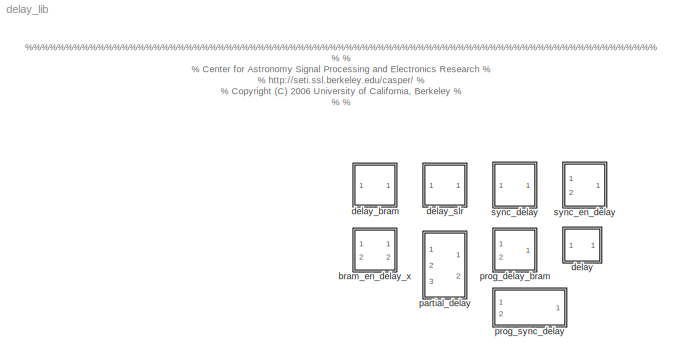
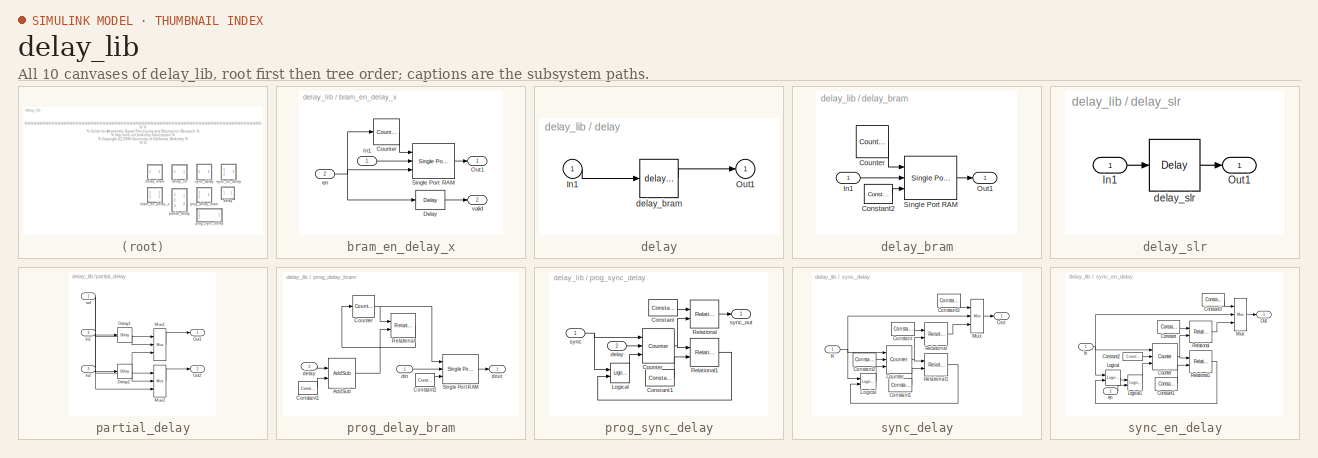
[diagram: thumbnail index - all 10 canvases of the model, root first then tree order]
MODEL delay_lib
KIND library
BLOCK [SubSystem] bram_en_delay_x
  MaskCallbackString = |
  MaskDisplay = fprintf('Z^-%d', DelayLen);\nport_label('input',2,'en');\nport_label('output',2,'valid');
  MaskEnableString = on,on
  MaskIconFrame = on
  MaskIconOpaque = on
  MaskIconRotate = none
  MaskIconUnits = autoscale
  MaskInitialization = BitWidth = max(ceil(log2(DelayLen)), 2);
  MaskPromptString = Enabled Delays:|Extra (unenabled) delay for BRAM Latency
  MaskSelfModifiable = on
  MaskStyleString = edit,edit
  MaskTabNameString = ,
  MaskToolTipString = on,on
  MaskTunableValueString = on,on
  MaskType = delay_bram
  MaskValueString = 7|4
  MaskVarAliasString = ,
  MaskVariables = DelayLen=@1;bram_latency=@2;
  MaskVisibilityString = on,on
  MinAlgLoopOccurrences = off
  Ports = [2, 2]
  RTWSystemCode = Auto
  TreatAsAtomicUnit = off
BLOCK [Reference] bram_en_delay_x/Counter  REF=xbsIndex_r3/Counter
  Ports = [1, 1]
  SourceBlock = xbsIndex_r3/Counter
  SourceType = Xilinx Counter Block
  arith_type = Unsigned
  bin_pt = 0
  cnt_by_val = 1
  cnt_to = DelayLen - 1
  cnt_type = Count Limited
  dbl_ovrd = off
  en = on
  explicit_period = off
  gen_core = on
  load_pin = off
  n_bits = BitWidth
  operation = Up
  period = 1
  rst = off
  show_param = off
  start_count = 0
  use_rpm = off
  xl_area = [0, 0, 0, 0, 0, 0, 0]
  xl_use_area = off
BLOCK [Reference] bram_en_delay_x/Delay  REF=xbsIndex_r3/Delay
  Ports = [1, 1]
  SourceBlock = xbsIndex_r3/Delay
  SourceType = Xilinx Delay Block
  accept_only_valid = off
  dbl_ovrd = off
  en = off
  explicit_period = off
  init_zero = on
  latency = bram_latency
  period = 1
  reg_retiming = off
  show_param = off
  xl_area = [0, 0, 0, 0, 0, 0, 0]
  xl_use_area = off
BLOCK [Inport] bram_en_delay_x/In1
  IconDisplay = Port number
  LatchInput = off
  Port = 1
BLOCK [Outport] bram_en_delay_x/Out1
  BusOutputAsStruct = off
  IconDisplay = Port number
BLOCK [Reference] bram_en_delay_x/Single Port RAM  REF=xbsIndex_r3/Single Port RAM
  Ports = [3, 1]
  SourceBlock = xbsIndex_r3/Single Port RAM
  SourceType = Xilinx Single Port Random Access Memory
  dbl_ovrd = off
  depth = 2^BitWidth
  distributed_mem = off
  en = off
  explicit_period = off
  gen_core = off
  initVector = 0
  init_reg = 0
  init_zero = on
  latency = bram_latency
  period = 1
  rst = off
  show_param = off
  use_rpm = off
  write_mode = Read Before Write
  xl_area = [0, 0, 0, 0, 0, 0, 0]
  xl_use_area = off
BLOCK [Inport] bram_en_delay_x/en
  IconDisplay = Port number
  LatchInput = off
  Port = 2
BLOCK [Outport] bram_en_delay_x/valid
  BusOutputAsStruct = off
  IconDisplay = Port number
  Port = 2
BLOCK [SubSystem] delay
  BlockChoice = delay_bram
  MemberBlocks = delay_bram,delay_slr
  MinAlgLoopOccurrences = off
  Ports = [1, 1]
  RTWSystemCode = Auto
  TemplateBlock = self
  TreatAsAtomicUnit = off
BLOCK [Inport] delay/In1
  IconDisplay = Port number
  LatchInput = off
  Port = 1
BLOCK [Outport] delay/Out1
  BusOutputAsStruct = off
  IconDisplay = Port number
BLOCK [Reference] delay/delay_bram  REF=delay_lib/delay_bram  (lib defined in mdl_032c7a696b9b)
  DelayLen = 7
  Ports = [1, 1]
  ShowPortLabels = on
  SourceBlock = delay_lib/delay_bram
  SourceType = delay_bram
  bram_latency = 4
BLOCK [SubSystem] delay_bram
  MaskCallbackString = |
  MaskDisplay = fprintf('Z^-%d', DelayLen)
  MaskEnableString = on,on
  MaskIconFrame = on
  MaskIconOpaque = on
  MaskIconRotate = none
  MaskIconUnits = autoscale
  MaskInitialization = if (DelayLen <= bram_latency)\n	error('delay value must be greater than BRAM Latency');\nend\nBitWidth = max(ceil(log2(DelayLen)), 2);
  MaskPromptString = Delay By:|BRAM Latency
  MaskSelfModifiable = on
  MaskStyleString = edit,edit
  MaskTabNameString = ,
  MaskToolTipString = on,on
  MaskTunableValueString = on,on
  MaskType = delay_bram
  MaskValueString = 7|4
  MaskVarAliasString = ,
  MaskVariables = DelayLen=@1;bram_latency=@2;
  MaskVisibilityString = on,on
  MinAlgLoopOccurrences = off
  Ports = [1, 1]
  RTWSystemCode = Auto
  TreatAsAtomicUnit = off
BLOCK [Reference] delay_bram/Constant2  REF=xbsIndex_r3/Constant
  Ports = [0, 1]
  SourceBlock = xbsIndex_r3/Constant
  SourceType = Xilinx Constant Block
  arith_type = Boolean
  bin_pt = 0
  carry = CIN
  const = 1
  dbl_ovrd = off
  equ = P=C
  explicit_period = on
  inp1 = P
  inp2 = PCIN>>17
  iostate = 0
  n_bits = 1
  opr = +
  opselect = C
  period = 1
BLOCK [Reference] delay_bram/Counter  REF=xbsIndex_r3/Counter
  Ports = [0, 1]
  SourceBlock = xbsIndex_r3/Counter
  SourceType = Xilinx Counter Block
  arith_type = Unsigned
  bin_pt = 0
  cnt_by_val = 1
  cnt_to = DelayLen - bram_latency - 1
  cnt_type = Count Limited
  dbl_ovrd = off
  en = off
  explicit_period = off
  gen_core = on
  load_pin = off
  n_bits = BitWidth
  operation = Up
  period = 1
  rst = off
  show_param = off
  start_count = 0
  use_rpm = off
  xl_area = [0, 0, 0, 0, 0, 0, 0]
  xl_use_area = off
BLOCK [Inport] delay_bram/In1
  IconDisplay = Port number
  LatchInput = off
  Port = 1
BLOCK [Outport] delay_bram/Out1
  BusOutputAsStruct = off
  IconDisplay = Port number
BLOCK [Reference] delay_bram/Single Port RAM  REF=xbsIndex_r3/Single Port RAM
  Ports = [3, 1]
  SourceBlock = xbsIndex_r3/Single Port RAM
  SourceType = Xilinx Single Port Random Access Memory
  dbl_ovrd = off
  depth = 2^BitWidth
  distributed_mem = off
  en = off
  explicit_period = off
  gen_core = off
  initVector = 0
  init_reg = 0
  init_zero = on
  latency = bram_latency
  period = 1
  rst = off
  show_param = off
  use_rpm = off
  write_mode = Read Before Write
  xl_area = [0, 0, 0, 0, 0, 0, 0]
  xl_use_area = off
BLOCK [SubSystem] delay_slr
  MaskEnableString = on
  MaskIconFrame = on
  MaskIconOpaque = on
  MaskIconRotate = none
  MaskIconUnits = autoscale
  MaskPromptString = Delay by:
  MaskStyleString = edit
  MaskToolTipString = on
  MaskTunableValueString = on
  MaskValueString = 0
  MaskVariables = DelayLen=@1;
  MaskVisibilityString = on
  MinAlgLoopOccurrences = off
  Ports = [1, 1]
  RTWSystemCode = Auto
  TreatAsAtomicUnit = off
BLOCK [Inport] delay_slr/In1
  IconDisplay = Port number
  LatchInput = off
  Port = 1
BLOCK [Outport] delay_slr/Out1
  BusOutputAsStruct = off
  IconDisplay = Port number
BLOCK [Reference] delay_slr/delay_slr  REF=xbsIndex_r3/Delay
  Ports = [1, 1]
  SourceBlock = xbsIndex_r3/Delay
  SourceType = Xilinx Delay Block
  accept_only_valid = off
  dbl_ovrd = off
  en = off
  explicit_period = off
  init_zero = on
  latency = DelayLen
  period = 1
  reg_retiming = off
  show_param = off
  xl_area = [0, 0, 0, 0, 0, 0, 0]
  xl_use_area = off
BLOCK [SubSystem] partial_delay
  MaskCallbackString = |
  MaskEnableString = on,on
  MaskIconFrame = on
  MaskIconOpaque = on
  MaskIconRotate = none
  MaskIconUnits = autoscale
  MaskInitialization = if num_inputs < 2,\n    error('Number of inputs less than 2.')\nend\n\npartial_delay_mask
  MaskPromptString = Number of Inputs (? >= 2)|Mux Latency
  MaskSelfModifiable = on
  MaskStyleString = edit,edit
  MaskTabNameString = ,
  MaskToolTipString = on,on
  MaskTunableValueString = on,on
  MaskValueString = 2|0
  MaskVarAliasString = ,
  MaskVariables = num_inputs=@1;mux_latency=@2;
  MaskVisibilityString = on,on
  MinAlgLoopOccurrences = off
  Ports = [3, 2]
  RTWSystemCode = Auto
  TreatAsAtomicUnit = off
BLOCK [Reference] partial_delay/Delay1  REF=xbsIndex_r3/Delay
  Ports = [1, 1]
  SourceBlock = xbsIndex_r3/Delay
  SourceType = Xilinx Delay Block
  accept_only_valid = off
  dbl_ovrd = off
  en = off
  explicit_period = off
  init_zero = on
  latency = 1
  period = 1
  reg_retiming = off
  show_param = off
  xl_area = [0, 0, 0, 0, 0, 0, 0]
  xl_use_area = off
BLOCK [Reference] partial_delay/Delay2  REF=xbsIndex_r3/Delay
  Ports = [1, 1]
  SourceBlock = xbsIndex_r3/Delay
  SourceType = Xilinx Delay Block
  accept_only_valid = off
  dbl_ovrd = off
  en = off
  explicit_period = off
  init_zero = on
  latency = 1
  period = 1
  reg_retiming = off
  show_param = off
  xl_area = [0, 0, 0, 0, 0, 0, 0]
  xl_use_area = off
BLOCK [Inport] partial_delay/In1
  IconDisplay = Port number
  LatchInput = off
  Port = 2
BLOCK [Inport] partial_delay/In2
  IconDisplay = Port number
  LatchInput = off
  Port = 3
BLOCK [Reference] partial_delay/Mux1  REF=xbsIndex_r3/Mux
  Ports = [3, 1]
  SourceBlock = xbsIndex_r3/Mux
  SourceType = Xilinx Multiplexer Block
  arith_type = Signed  (2's comp)
  bin_pt = 2
  dbl_ovrd = off
  en = off
  explicit_period = off
  gen_core = off
  inputs = 2
  latency = mux_latency
  mux_type = off
  n_bits = 8
  overflow = Wrap
  period = 1
  precision = Full
  quantization = Truncate
  show_param = off
  use_rpm = off
  xl_area = [0, 0, 0, 0, 0, 0, 0]
  xl_use_area = off
BLOCK [Reference] partial_delay/Mux2  REF=xbsIndex_r3/Mux
  Ports = [3, 1]
  SourceBlock = xbsIndex_r3/Mux
  SourceType = Xilinx Multiplexer Block
  arith_type = Signed  (2's comp)
  bin_pt = 2
  dbl_ovrd = off
  en = off
  explicit_period = off
  gen_core = off
  inputs = 2
  latency = mux_latency
  mux_type = off
  n_bits = 8
  overflow = Wrap
  period = 1
  precision = Full
  quantization = Truncate
  show_param = off
  use_rpm = off
  xl_area = [0, 0, 0, 0, 0, 0, 0]
  xl_use_area = off
BLOCK [Outport] partial_delay/Out1
  BusOutputAsStruct = off
  IconDisplay = Port number
BLOCK [Outport] partial_delay/Out2
  BusOutputAsStruct = off
  IconDisplay = Port number
  Port = 2
BLOCK [Inport] partial_delay/sel
  IconDisplay = Port number
  LatchInput = off
  Port = 1
BLOCK [SubSystem] prog_delay_bram
  MaskCallbackString = |
  MaskEnableString = on,on
  MaskIconFrame = on
  MaskIconOpaque = on
  MaskIconRotate = none
  MaskIconUnits = autoscale
  MaskPromptString = Max Delay (2^?):|BRAM Latency
  MaskSelfModifiable = on
  MaskStyleString = edit,edit
  MaskTabNameString = ,
  MaskToolTipString = on,on
  MaskTunableValueString = on,on
  MaskType = delay_bram
  MaskValueString = 7|4
  MaskVarAliasString = ,
  MaskVariables = MaxDelay=@1;bram_latency=@2;
  MaskVisibilityString = on,on
  MinAlgLoopOccurrences = off
  Ports = [2, 1]
  RTWSystemCode = Auto
  TreatAsAtomicUnit = off
BLOCK [Reference] prog_delay_bram/AddSub  REF=xbsIndex_r3/AddSub
  Ports = [2, 1]
  SourceBlock = xbsIndex_r3/AddSub
  SourceType = Xilinx Adder/Subtractor
  arith_type = Unsigned
  bin_pt = 0
  dbl_ovrd = off
  en = off
  explicit_period = off
  gen_core = off
  latency = 2
  mode = Subtraction
  n_bits = MaxDelay
  overflow = Wrap
  period = 1
  pipeline = off
  precision = User Defined
  quantization = Truncate
  show_param = off
  use_carryin = off
  use_carryout = off
  use_core = on
  use_rpm = on
  xl_area = [0, 0, 0, 0, 0, 0, 0]
  xl_use_area = off
BLOCK [Reference] prog_delay_bram/Constant1  REF=xbsIndex_r3/Constant
  Ports = [0, 1]
  SourceBlock = xbsIndex_r3/Constant
  SourceType = Xilinx Constant Block
  arith_type = Unsigned
  bin_pt = 0
  carry = CIN
  const = bram_latency + 1
  dbl_ovrd = off
  equ = P=C
  explicit_period = on
  inp1 = P
  inp2 = PCIN>>17
  iostate = 0
  n_bits = MaxDelay
  opr = +
  opselect = C
  period = 1
BLOCK [Reference] prog_delay_bram/Constant2  REF=xbsIndex_r3/Constant
  Ports = [0, 1]
  SourceBlock = xbsIndex_r3/Constant
  SourceType = Xilinx Constant Block
  arith_type = Boolean
  bin_pt = 0
  carry = CIN
  const = 1
  dbl_ovrd = off
  equ = P=C
  explicit_period = on
  inp1 = P
  inp2 = PCIN>>17
  iostate = 0
  n_bits = 1
  opr = +
  opselect = C
  period = 1
BLOCK [Reference] prog_delay_bram/Counter  REF=xbsIndex_r3/Counter
  Ports = [1, 1]
  SourceBlock = xbsIndex_r3/Counter
  SourceType = Xilinx Counter Block
  arith_type = Unsigned
  bin_pt = 0
  cnt_by_val = 1
  cnt_to = DelayLen - bram_latency - 1
  cnt_type = Free Running
  dbl_ovrd = off
  en = off
  explicit_period = on
  gen_core = on
  load_pin = off
  n_bits = MaxDelay
  operation = Up
  period = 1
  rst = on
  show_param = off
  start_count = 0
  use_rpm = off
  xl_area = [0, 0, 0, 0, 0, 0, 0]
  xl_use_area = off
BLOCK [Reference] prog_delay_bram/Relational  REF=xbsIndex_r3/Relational
  Ports = [2, 1]
  SourceBlock = xbsIndex_r3/Relational
  SourceType = Xilinx Relational Block
  dbl_ovrd = off
  en = off
  explicit_period = off
  latency = 0
  mode = a>=b
  period = 1
  show_param = off
  xl_area = [0, 0, 0, 0, 0, 0, 0]
  xl_use_area = off
BLOCK [Reference] prog_delay_bram/Single Port RAM  REF=xbsIndex_r3/Single Port RAM
  Ports = [3, 1]
  SourceBlock = xbsIndex_r3/Single Port RAM
  SourceType = Xilinx Single Port Random Access Memory
  dbl_ovrd = off
  depth = 2^MaxDelay
  distributed_mem = off
  en = off
  explicit_period = off
  gen_core = off
  initVector = 0
  init_reg = 0
  init_zero = on
  latency = bram_latency
  period = 1
  rst = off
  show_param = off
  use_rpm = off
  write_mode = Read Before Write
  xl_area = [0, 0, 0, 0, 0, 0, 0]
  xl_use_area = off
BLOCK [Inport] prog_delay_bram/delay
  IconDisplay = Port number
  LatchInput = off
  Port = 2
BLOCK [Inport] prog_delay_bram/din
  IconDisplay = Port number
  LatchInput = off
  Port = 1
BLOCK [Outport] prog_delay_bram/dout
  BusOutputAsStruct = off
  IconDisplay = Port number
BLOCK [SubSystem] prog_sync_delay
  MaskEnableString = on
  MaskIconFrame = on
  MaskIconOpaque = on
  MaskIconRotate = none
  MaskIconUnits = autoscale
  MaskPromptString = Max Delay (2^?):
  MaskSelfModifiable = on
  MaskStyleString = edit
  MaskToolTipString = on
  MaskTunableValueString = on
  MaskValueString = 4
  MaskVariables = MaxDelay=@1;
  MaskVisibilityString = on
  MinAlgLoopOccurrences = off
  Ports = [2, 1]
  RTWSystemCode = Auto
  TreatAsAtomicUnit = off
BLOCK [Reference] prog_sync_delay/Constant  REF=xbsIndex_r3/Constant
  Ports = [0, 1]
  SourceBlock = xbsIndex_r3/Constant
  SourceType = Xilinx Constant Block
  arith_type = Unsigned
  bin_pt = 0
  carry = CIN
  const = 1
  dbl_ovrd = off
  equ = P=C
  explicit_period = on
  inp1 = P
  inp2 = PCIN>>17
  iostate = 0
  n_bits = MaxDelay
  opr = +
  opselect = C
  period = 1
BLOCK [Reference] prog_sync_delay/Constant1  REF=xbsIndex_r3/Constant
  Ports = [0, 1]
  SourceBlock = xbsIndex_r3/Constant
  SourceType = Xilinx Constant Block
  arith_type = Unsigned
  bin_pt = 0
  carry = CIN
  const = 0
  dbl_ovrd = off
  equ = P=C
  explicit_period = on
  inp1 = P
  inp2 = PCIN>>17
  iostate = 0
  n_bits = MaxDelay
  opr = +
  opselect = C
  period = 1
BLOCK [Reference] prog_sync_delay/Counter  REF=xbsIndex_r3/Counter
  Ports = [3, 1]
  SourceBlock = xbsIndex_r3/Counter
  SourceType = Xilinx Counter Block
  arith_type = Unsigned
  bin_pt = 0
  cnt_by_val = 1
  cnt_to = Inf
  cnt_type = Free Running
  dbl_ovrd = off
  en = on
  explicit_period = on
  gen_core = off
  load_pin = on
  n_bits = MaxDelay
  operation = Down
  period = 1
  rst = off
  show_param = off
  start_count = 0
  use_rpm = on
  xl_area = [0, 0, 0, 0, 0, 0, 0]
  xl_use_area = off
BLOCK [Reference] prog_sync_delay/Logical  REF=xbsIndex_r3/Logical
  Ports = [2, 1]
  SourceBlock = xbsIndex_r3/Logical
  SourceType = Xilinx Logical Block
  align_bp = on
  arith_type = Unsigned
  bin_pt = 2
  dbl_ovrd = off
  en = off
  explicit_period = on
  inputs = 2
  latency = 0
  logical_function = OR
  n_bits = 8
  period = 1
  precision = Full
  show_param = off
  xl_area = [0, 0, 0, 0, 0, 0, 0]
  xl_use_area = off
BLOCK [Reference] prog_sync_delay/Relational  REF=xbsIndex_r3/Relational
  Ports = [2, 1]
  SourceBlock = xbsIndex_r3/Relational
  SourceType = Xilinx Relational Block
  dbl_ovrd = off
  en = off
  explicit_period = off
  latency = 0
  mode = a=b
  period = 1
  show_param = off
  xl_area = [0, 0, 0, 0, 0, 0, 0]
  xl_use_area = off
BLOCK [Reference] prog_sync_delay/Relational1  REF=xbsIndex_r3/Relational
  Ports = [2, 1]
  SourceBlock = xbsIndex_r3/Relational
  SourceType = Xilinx Relational Block
  dbl_ovrd = off
  en = off
  explicit_period = on
  latency = 0
  mode = a!=b
  period = 1
  show_param = off
  xl_area = [0, 0, 0, 0, 0, 0, 0]
  xl_use_area = off
BLOCK [Inport] prog_sync_delay/delay
  IconDisplay = Port number
  LatchInput = off
  Port = 2
BLOCK [Inport] prog_sync_delay/sync
  IconDisplay = Port number
  LatchInput = off
  Port = 1
BLOCK [Outport] prog_sync_delay/sync_out
  BusOutputAsStruct = off
  IconDisplay = Port number
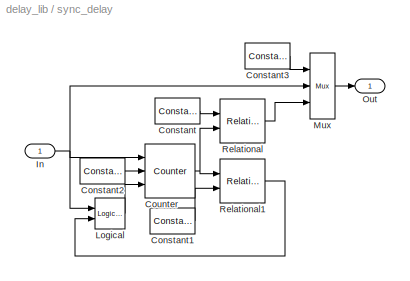
BLOCK [SubSystem] sync_delay
  MaskDisplay = fprintf('Z^-%d', DelayLen)
  MaskEnableString = on
  MaskIconFrame = on
  MaskIconOpaque = on
  MaskIconRotate = none
  MaskIconUnits = autoscale
  MaskInitialization = BitWidth = max(2, ceil(log2(DelayLen+1)));\nUseCounter = 1;\nif DelayLen == 0,\n	UseCounter = 0;\nend
  MaskPromptString = Delay Length:
  MaskSelfModifiable = on
  MaskStyleString = edit
  MaskToolTipString = on
  MaskTunableValueString = on
  MaskValueString = 4
  MaskVariables = DelayLen=@1;
  MaskVisibilityString = on
  MinAlgLoopOccurrences = off
  Ports = [1, 1]
  RTWSystemCode = Auto
  TreatAsAtomicUnit = off
BLOCK [Reference] sync_delay/Constant  REF=xbsIndex_r3/Constant
  Ports = [0, 1]
  SourceBlock = xbsIndex_r3/Constant
  SourceType = Xilinx Constant Block
  arith_type = Unsigned
  bin_pt = 0
  carry = CIN
  const = 1
  dbl_ovrd = off
  equ = P=C
  explicit_period = on
  inp1 = P
  inp2 = PCIN>>17
  iostate = 0
  n_bits = BitWidth
  opr = +
  opselect = C
  period = 1
BLOCK [Reference] sync_delay/Constant1  REF=xbsIndex_r3/Constant
  Ports = [0, 1]
  SourceBlock = xbsIndex_r3/Constant
  SourceType = Xilinx Constant Block
  arith_type = Unsigned
  bin_pt = 0
  carry = CIN
  const = 0
  dbl_ovrd = off
  equ = P=C
  explicit_period = on
  inp1 = P
  inp2 = PCIN>>17
  iostate = 0
  n_bits = BitWidth
  opr = +
  opselect = C
  period = 1
BLOCK [Reference] sync_delay/Constant2  REF=xbsIndex_r3/Constant
  Ports = [0, 1]
  SourceBlock = xbsIndex_r3/Constant
  SourceType = Xilinx Constant Block
  arith_type = Unsigned
  bin_pt = 0
  carry = CIN
  const = DelayLen
  dbl_ovrd = off
  equ = P=C
  explicit_period = on
  inp1 = P
  inp2 = PCIN>>17
  iostate = 0
  n_bits = BitWidth
  opr = +
  opselect = C
  period = 1
BLOCK [Reference] sync_delay/Constant3  REF=xbsIndex_r3/Constant
  Ports = [0, 1]
  SourceBlock = xbsIndex_r3/Constant
  SourceType = Xilinx Constant Block
  arith_type = Unsigned
  bin_pt = 0
  carry = CIN
  const = UseCounter
  dbl_ovrd = off
  equ = P=C
  explicit_period = on
  inp1 = P
  inp2 = PCIN>>17
  iostate = 0
  n_bits = 1
  opr = +
  opselect = C
  period = 1
BLOCK [Reference] sync_delay/Counter  REF=xbsIndex_r3/Counter
  Ports = [3, 1]
  SourceBlock = xbsIndex_r3/Counter
  SourceType = Xilinx Counter Block
  arith_type = Unsigned
  bin_pt = 0
  cnt_by_val = 1
  cnt_to = Inf
  cnt_type = Free Running
  dbl_ovrd = off
  en = on
  explicit_period = on
  gen_core = off
  load_pin = on
  n_bits = BitWidth
  operation = Down
  period = 1
  rst = off
  show_param = off
  start_count = 0
  use_rpm = on
  xl_area = [0, 0, 0, 0, 0, 0, 0]
  xl_use_area = off
BLOCK [Inport] sync_delay/In
  IconDisplay = Port number
  LatchInput = off
  Port = 1
BLOCK [Reference] sync_delay/Logical  REF=xbsIndex_r3/Logical
  Ports = [2, 1]
  SourceBlock = xbsIndex_r3/Logical
  SourceType = Xilinx Logical Block
  align_bp = on
  arith_type = Unsigned
  bin_pt = 2
  dbl_ovrd = off
  en = off
  explicit_period = on
  inputs = 2
  latency = 0
  logical_function = OR
  n_bits = 8
  period = 1
  precision = Full
  show_param = off
  xl_area = [0, 0, 0, 0, 0, 0, 0]
  xl_use_area = off
BLOCK [Reference] sync_delay/Mux  REF=xbsIndex_r3/Mux
  Ports = [3, 1]
  SourceBlock = xbsIndex_r3/Mux
  SourceType = Xilinx Multiplexer Block
  arith_type = Signed  (2's comp)
  bin_pt = 2
  dbl_ovrd = off
  en = off
  explicit_period = off
  gen_core = off
  inputs = 2
  latency = 0
  mux_type = off
  n_bits = 8
  overflow = Wrap
  period = 1
  precision = Full
  quantization = Truncate
  show_param = off
  use_rpm = off
  xl_area = [0, 0, 0, 0, 0, 0, 0]
  xl_use_area = off
BLOCK [Outport] sync_delay/Out
  BusOutputAsStruct = off
  IconDisplay = Port number
BLOCK [Reference] sync_delay/Relational  REF=xbsIndex_r3/Relational
  Ports = [2, 1]
  SourceBlock = xbsIndex_r3/Relational
  SourceType = Xilinx Relational Block
  dbl_ovrd = off
  en = off
  explicit_period = off
  latency = 0
  mode = a=b
  period = 1
  show_param = off
  xl_area = [0, 0, 0, 0, 0, 0, 0]
  xl_use_area = off
BLOCK [Reference] sync_delay/Relational1  REF=xbsIndex_r3/Relational
  Ports = [2, 1]
  SourceBlock = xbsIndex_r3/Relational
  SourceType = Xilinx Relational Block
  dbl_ovrd = off
  en = off
  explicit_period = on
  latency = 0
  mode = a!=b
  period = 1
  show_param = off
  xl_area = [0, 0, 0, 0, 0, 0, 0]
  xl_use_area = off
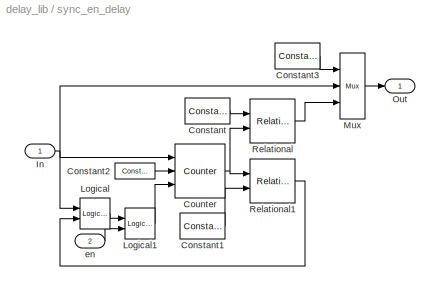
BLOCK [SubSystem] sync_en_delay
  MaskDisplay = fprintf('Z^-%d', DelayLen);\nport_label('input',2,'en');
  MaskEnableString = on
  MaskIconFrame = on
  MaskIconOpaque = on
  MaskIconRotate = none
  MaskIconUnits = autoscale
  MaskInitialization = BitWidth = max(2, ceil(log2(DelayLen+1)));\nUseCounter = 1;\nif DelayLen == 0,\n	UseCounter = 0;\nend
  MaskPromptString = Delay Length:
  MaskSelfModifiable = on
  MaskStyleString = edit
  MaskToolTipString = on
  MaskTunableValueString = on
  MaskValueString = 4
  MaskVariables = DelayLen=@1;
  MaskVisibilityString = on
  MinAlgLoopOccurrences = off
  Ports = [2, 1]
  RTWSystemCode = Auto
  TreatAsAtomicUnit = off
BLOCK [Reference] sync_en_delay/Constant  REF=xbsIndex_r3/Constant
  Ports = [0, 1]
  SourceBlock = xbsIndex_r3/Constant
  SourceType = Xilinx Constant Block
  arith_type = Unsigned
  bin_pt = 0
  carry = CIN
  const = 1
  dbl_ovrd = off
  equ = P=C
  explicit_period = on
  inp1 = P
  inp2 = PCIN>>17
  iostate = 0
  n_bits = BitWidth
  opr = +
  opselect = C
  period = 1
BLOCK [Reference] sync_en_delay/Constant1  REF=xbsIndex_r3/Constant
  Ports = [0, 1]
  SourceBlock = xbsIndex_r3/Constant
  SourceType = Xilinx Constant Block
  arith_type = Unsigned
  bin_pt = 0
  carry = CIN
  const = 0
  dbl_ovrd = off
  equ = P=C
  explicit_period = on
  inp1 = P
  inp2 = PCIN>>17
  iostate = 0
  n_bits = BitWidth
  opr = +
  opselect = C
  period = 1
BLOCK [Reference] sync_en_delay/Constant2  REF=xbsIndex_r3/Constant
  Ports = [0, 1]
  SourceBlock = xbsIndex_r3/Constant
  SourceType = Xilinx Constant Block
  arith_type = Unsigned
  bin_pt = 0
  carry = CIN
  const = DelayLen
  dbl_ovrd = off
  equ = P=C
  explicit_period = on
  inp1 = P
  inp2 = PCIN>>17
  iostate = 0
  n_bits = BitWidth
  opr = +
  opselect = C
  period = 1
BLOCK [Reference] sync_en_delay/Constant3  REF=xbsIndex_r3/Constant
  Ports = [0, 1]
  SourceBlock = xbsIndex_r3/Constant
  SourceType = Xilinx Constant Block
  arith_type = Unsigned
  bin_pt = 0
  carry = CIN
  const = UseCounter
  dbl_ovrd = off
  equ = P=C
  explicit_period = on
  inp1 = P
  inp2 = PCIN>>17
  iostate = 0
  n_bits = 1
  opr = +
  opselect = C
  period = 1
BLOCK [Reference] sync_en_delay/Counter  REF=xbsIndex_r3/Counter
  Ports = [3, 1]
  SourceBlock = xbsIndex_r3/Counter
  SourceType = Xilinx Counter Block
  arith_type = Unsigned
  bin_pt = 0
  cnt_by_val = 1
  cnt_to = Inf
  cnt_type = Free Running
  dbl_ovrd = off
  en = on
  explicit_period = on
  gen_core = off
  load_pin = on
  n_bits = BitWidth
  operation = Down
  period = 1
  rst = off
  show_param = off
  start_count = 0
  use_rpm = on
  xl_area = [0, 0, 0, 0, 0, 0, 0]
  xl_use_area = off
BLOCK [Inport] sync_en_delay/In
  IconDisplay = Port number
  LatchInput = off
  Port = 1
BLOCK [Reference] sync_en_delay/Logical  REF=xbsIndex_r3/Logical
  Ports = [2, 1]
  SourceBlock = xbsIndex_r3/Logical
  SourceType = Xilinx Logical Block
  align_bp = on
  arith_type = Unsigned
  bin_pt = 2
  dbl_ovrd = off
  en = off
  explicit_period = on
  inputs = 2
  latency = 0
  logical_function = OR
  n_bits = 8
  period = 1
  precision = Full
  show_param = off
  xl_area = [0, 0, 0, 0, 0, 0, 0]
  xl_use_area = off
BLOCK [Reference] sync_en_delay/Logical1  REF=xbsIndex_r3/Logical
  Ports = [2, 1]
  SourceBlock = xbsIndex_r3/Logical
  SourceType = Xilinx Logical Block
  align_bp = on
  arith_type = Unsigned
  bin_pt = 2
  dbl_ovrd = off
  en = off
  explicit_period = on
  inputs = 2
  latency = 0
  logical_function = AND
  n_bits = 8
  period = 1
  precision = Full
  show_param = off
  xl_area = [0, 0, 0, 0, 0, 0, 0]
  xl_use_area = off
BLOCK [Reference] sync_en_delay/Mux  REF=xbsIndex_r3/Mux
  Ports = [3, 1]
  SourceBlock = xbsIndex_r3/Mux
  SourceType = Xilinx Multiplexer Block
  arith_type = Signed  (2's comp)
  bin_pt = 2
  dbl_ovrd = off
  en = off
  explicit_period = off
  gen_core = off
  inputs = 2
  latency = 0
  mux_type = off
  n_bits = 8
  overflow = Wrap
  period = 1
  precision = Full
  quantization = Truncate
  show_param = off
  use_rpm = off
  xl_area = [0, 0, 0, 0, 0, 0, 0]
  xl_use_area = off
BLOCK [Outport] sync_en_delay/Out
  BusOutputAsStruct = off
  IconDisplay = Port number
BLOCK [Reference] sync_en_delay/Relational  REF=xbsIndex_r3/Relational
  Ports = [2, 1]
  SourceBlock = xbsIndex_r3/Relational
  SourceType = Xilinx Relational Block
  dbl_ovrd = off
  en = off
  explicit_period = off
  latency = 0
  mode = a=b
  period = 1
  show_param = off
  xl_area = [0, 0, 0, 0, 0, 0, 0]
  xl_use_area = off
BLOCK [Reference] sync_en_delay/Relational1  REF=xbsIndex_r3/Relational
  Ports = [2, 1]
  SourceBlock = xbsIndex_r3/Relational
  SourceType = Xilinx Relational Block
  dbl_ovrd = off
  en = off
  explicit_period = on
  latency = 0
  mode = a!=b
  period = 1
  show_param = off
  xl_area = [0, 0, 0, 0, 0, 0, 0]
  xl_use_area = off
BLOCK [Inport] sync_en_delay/en
  IconDisplay = Port number
  LatchInput = off
  Port = 2
ANNOTATION (root): %%%%%%%%%%%%%%%%%%%%%%%%%%%%%%%%%%%%%%%%%%%%%%%%%%%%%%%%%%%%%%%%%%%%%%%%%%%%%%%\n% %\n% Center for Astronomy Signal Processing and Electronics Research %\n% http://seti.ssl.berkeley.edu/casper/ %\n% <copyright redacted>\n% %\n% This program is free software; you can redistribute it and/or modify %\n% it under the terms of the GNU General Public License as publish...<+687ch>
LINE bram_en_delay_x/Counter:1 -> bram_en_delay_x/Single Port RAM:1
LINE bram_en_delay_x/Delay:1 -> bram_en_delay_x/valid:1
LINE bram_en_delay_x/In1:1 -> bram_en_delay_x/Single Port RAM:2
LINE bram_en_delay_x/Single Port RAM:1 -> bram_en_delay_x/Out1:1
NET bram_en_delay_x/en:1 -> bram_en_delay_x/Counter:1, bram_en_delay_x/Delay:1, bram_en_delay_x/Single Port RAM:3
LINE delay/In1:1 -> delay/delay_bram:1
LINE delay/delay_bram:1 -> delay/Out1:1
LINE delay_bram/Constant2:1 -> delay_bram/Single Port RAM:3
LINE delay_bram/Counter:1 -> delay_bram/Single Port RAM:1
LINE delay_bram/In1:1 -> delay_bram/Single Port RAM:2
LINE delay_bram/Single Port RAM:1 -> delay_bram/Out1:1
LINE delay_slr/In1:1 -> delay_slr/delay_slr:1
LINE delay_slr/delay_slr:1 -> delay_slr/Out1:1
LINE partial_delay/Delay1:1 -> partial_delay/Mux1:2
NET partial_delay/Delay2:1 -> partial_delay/Mux1:3, partial_delay/Mux2:2
NET partial_delay/In1:1 -> partial_delay/Delay1:1, partial_delay/Mux2:3
LINE partial_delay/In2:1 -> partial_delay/Delay2:1
LINE partial_delay/Mux1:1 -> partial_delay/Out1:1
LINE partial_delay/Mux2:1 -> partial_delay/Out2:1
NET partial_delay/sel:1 -> partial_delay/Mux1:1, partial_delay/Mux2:1
LINE prog_delay_bram/AddSub:1 -> prog_delay_bram/Relational:2
LINE prog_delay_bram/Constant1:1 -> prog_delay_bram/AddSub:2
LINE prog_delay_bram/Constant2:1 -> prog_delay_bram/Single Port RAM:3
NET prog_delay_bram/Counter:1 -> prog_delay_bram/Relational:1, prog_delay_bram/Single Port RAM:1
LINE prog_delay_bram/Relational:1 -> prog_delay_bram/Counter:1
LINE prog_delay_bram/Single Port RAM:1 -> prog_delay_bram/dout:1
LINE prog_delay_bram/delay:1 -> prog_delay_bram/AddSub:1
LINE prog_delay_bram/din:1 -> prog_delay_bram/Single Port RAM:2
LINE prog_sync_delay/Constant1:1 -> prog_sync_delay/Relational1:2
LINE prog_sync_delay/Constant:1 -> prog_sync_delay/Relational:1
NET prog_sync_delay/Counter:1 -> prog_sync_delay/Relational1:1, prog_sync_delay/Relational:2
LINE prog_sync_delay/Logical:1 -> prog_sync_delay/Counter:3
LINE prog_sync_delay/Relational1:1 -> prog_sync_delay/Logical:2
LINE prog_sync_delay/Relational:1 -> prog_sync_delay/sync_out:1
LINE prog_sync_delay/delay:1 -> prog_sync_delay/Counter:2
NET prog_sync_delay/sync:1 -> prog_sync_delay/Counter:1, prog_sync_delay/Logical:1
LINE sync_delay/Constant1:1 -> sync_delay/Relational1:2
LINE sync_delay/Constant2:1 -> sync_delay/Counter:2
LINE sync_delay/Constant3:1 -> sync_delay/Mux:1
LINE sync_delay/Constant:1 -> sync_delay/Relational:1
NET sync_delay/Counter:1 -> sync_delay/Relational1:1, sync_delay/Relational:2
NET sync_delay/In:1 -> sync_delay/Counter:1, sync_delay/Logical:1, sync_delay/Mux:2
LINE sync_delay/Logical:1 -> sync_delay/Counter:3
LINE sync_delay/Mux:1 -> sync_delay/Out:1
LINE sync_delay/Relational1:1 -> sync_delay/Logical:2
LINE sync_delay/Relational:1 -> sync_delay/Mux:3
LINE sync_en_delay/Constant1:1 -> sync_en_delay/Relational1:2
LINE sync_en_delay/Constant2:1 -> sync_en_delay/Counter:2
LINE sync_en_delay/Constant3:1 -> sync_en_delay/Mux:1
LINE sync_en_delay/Constant:1 -> sync_en_delay/Relational:1
NET sync_en_delay/Counter:1 -> sync_en_delay/Relational1:1, sync_en_delay/Relational:2
NET sync_en_delay/In:1 -> sync_en_delay/Counter:1, sync_en_delay/Logical:1, sync_en_delay/Mux:2
LINE sync_en_delay/Logical1:1 -> sync_en_delay/Counter:3
LINE sync_en_delay/Logical:1 -> sync_en_delay/Logical1:1
LINE sync_en_delay/Mux:1 -> sync_en_delay/Out:1
LINE sync_en_delay/Relational1:1 -> sync_en_delay/Logical:2
LINE sync_en_delay/Relational:1 -> sync_en_delay/Mux:3
LINE sync_en_delay/en:1 -> sync_en_delay/Logical1:2
note: NET lines group one-source signal fan-out (src -> all destinations, sorted); 1:1 wires keep LINE
